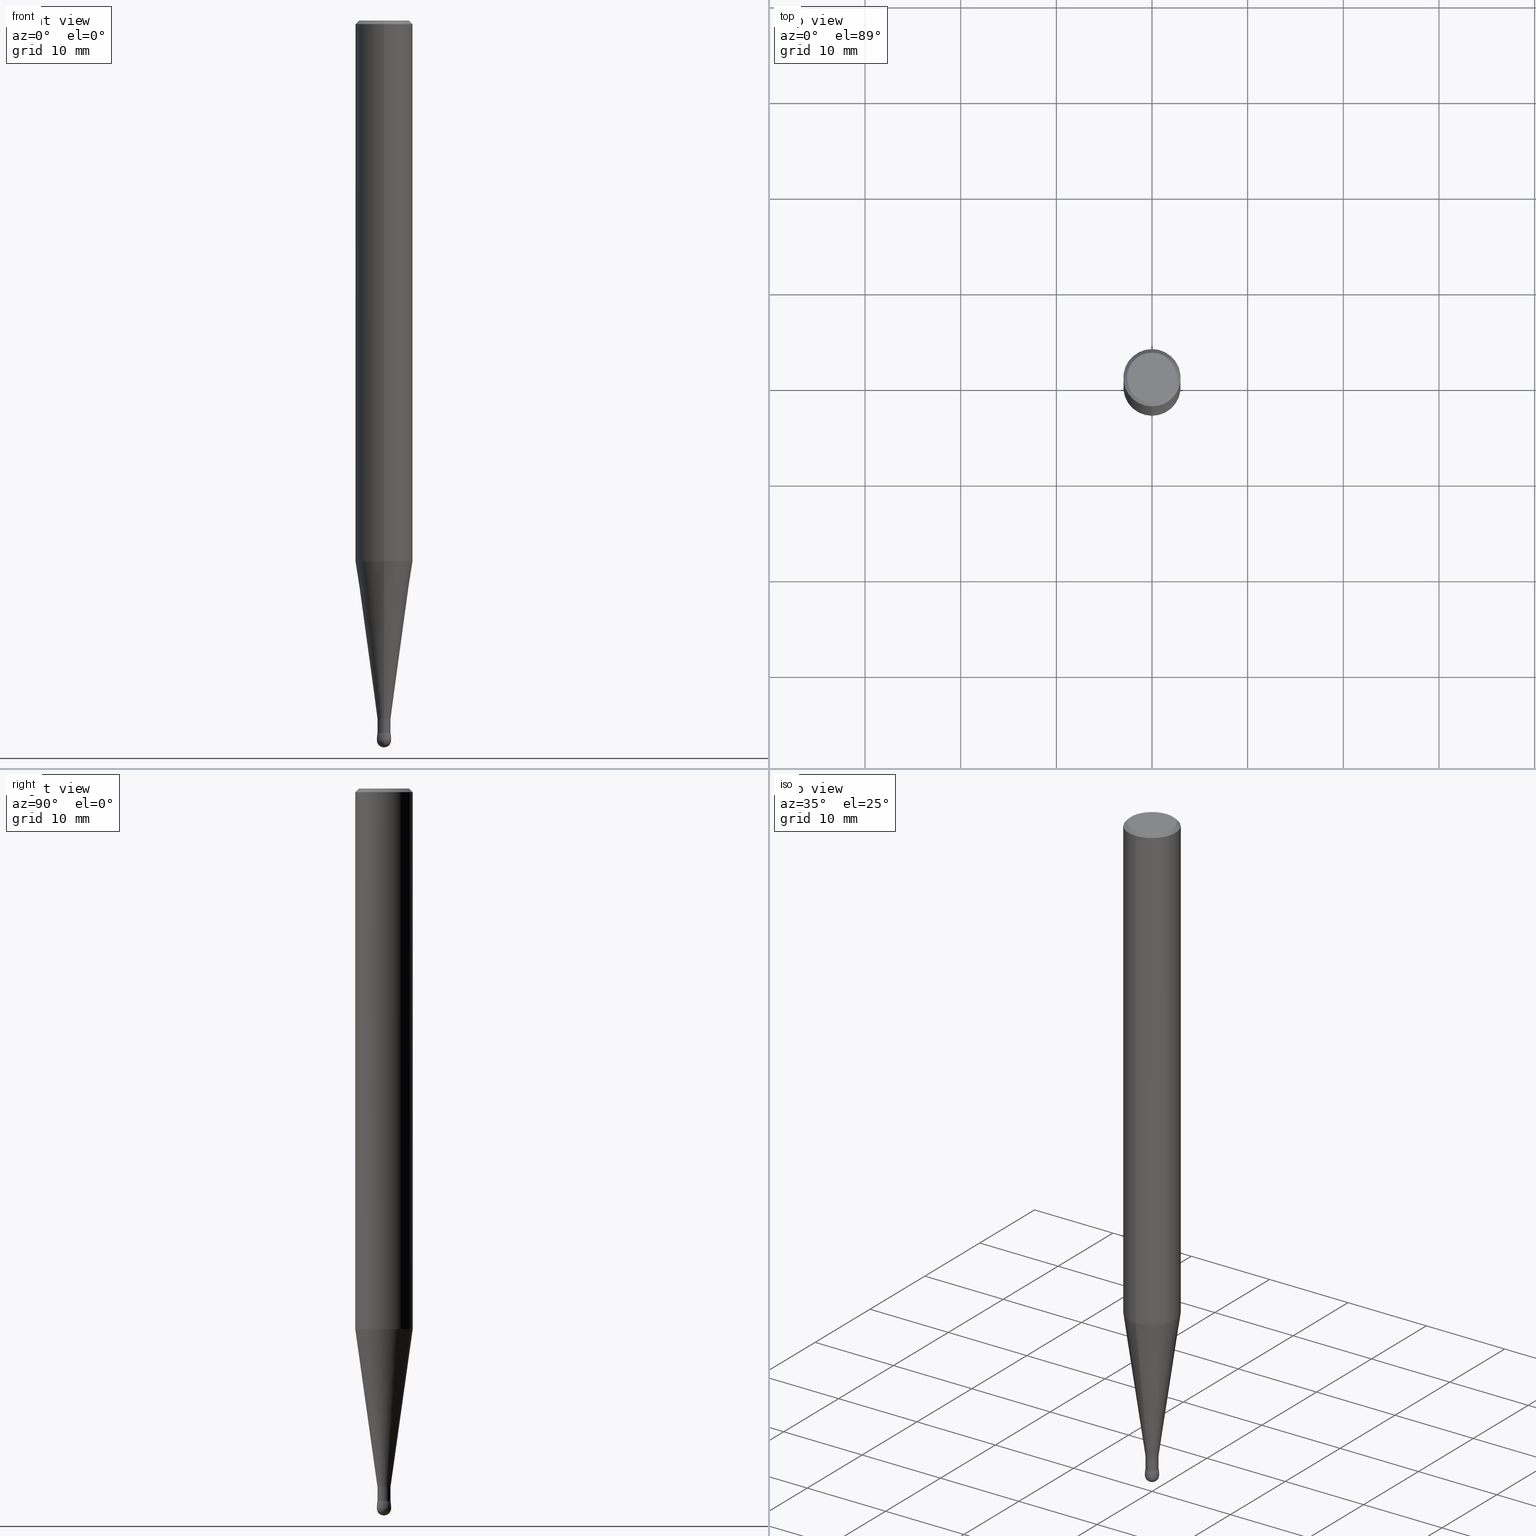
[diagram: canonical four-view strip — front | top / right | iso, engineering-drawing reading convention]
A machine part, canonical four-view strip (front | top / right | iso — engineering-drawing reading convention). The complete STEP part file that produces these views, byte-faithful:
ISO-10303-21;
HEADER;
FILE_DESCRIPTION (( 'STEP AP203' ),
    '1' );
FILE_NAME ('91350.STEP',
    '2024-02-29T19:21:57',
    ( '' ),
    ( '' ),
    'SwSTEP 2.0',
    'SolidWorks 2023',
    '' );
FILE_SCHEMA (( 'CONFIG_CONTROL_DESIGN' ));
ENDSEC;

DATA;
#1 = AXIS2_PLACEMENT_3D ( 'NONE', #483, #92, #296 ) ;
#2 = EDGE_LOOP ( 'NONE', ( #381, #66 ) ) ;
#3 = LOCAL_TIME ( 14, 21, 57.00000000000000000, #150 ) ;
#4 = ORIENTED_EDGE ( 'NONE', *, *, #370, .T. ) ;
#5 = APPROVAL_ROLE ( '' ) ;
#6 = EDGE_LOOP ( 'NONE', ( #391, #48, #73, #108 ) ) ;
#7 = CIRCLE ( 'NONE', #119, 0.02700000000000054440 ) ;
#8 = CARTESIAN_POINT ( 'NONE',  ( -1.878416960296926226E-16, -0.02690000000001078334, -2.932999999999999385 ) ) ;
#9 = ADVANCED_FACE ( 'NONE', ( #122 ), #395, .F. ) ;
#10 = LINE ( 'NONE', #83, #382 ) ;
#11 = CARTESIAN_POINT ( 'NONE',  ( 7.169190653361638240E-29, -1.024533987521558560E-14, -2.932999999999999385 ) ) ;
#12 = DIRECTION ( 'NONE',  ( -1.000000000000000000, 6.982962677686265922E-15, -4.883557194083113462E-29 ) ) ;
#13 = CC_DESIGN_PERSON_AND_ORGANIZATION_ASSIGNMENT ( #267, #196, ( #253 ) ) ;
#14 = ORIENTED_EDGE ( 'NONE', *, *, #370, .F. ) ;
#15 = AXIS2_PLACEMENT_3D ( 'NONE', #214, #250, #167 ) ;
#16 = DIRECTION ( 'NONE',  ( -8.954056820805339450E-29, -5.829187143917178840E-15, 1.000000000000000000 ) ) ;
#17 = CC_DESIGN_APPROVAL ( #197, ( #458 ) ) ;
#18 = LENGTH_MEASURE_WITH_UNIT ( LENGTH_MEASURE( 0.02539999999999999897 ), #183 );
#19 = FACE_OUTER_BOUND ( 'NONE', #85, .T. ) ;
#20 = AXIS2_PLACEMENT_3D ( 'NONE', #100, #259, #262 ) ;
#21 = VECTOR ( 'NONE', #165, 39.37007874015748143 ) ;
#22 = LINE ( 'NONE', #56, #484 ) ;
#23 = CONICAL_SURFACE ( 'NONE', #317, 0.1180999999999996358, 0.7853981633974579379 ) ;
#24 = EDGE_CURVE ( 'NONE', #215, #464, #207, .T. ) ;
#25 = FACE_OUTER_BOUND ( 'NONE', #28, .T. ) ;
#26 = APPROVAL ( #226, 'UNSPECIFIED' ) ;
#27 = DIRECTION ( 'NONE',  ( 2.444320031831448722E-29, -3.493126449101802848E-15, -1.000000000000000000 ) ) ;
#28 = EDGE_LOOP ( 'NONE', ( #443, #251 ) ) ;
#29 = DIRECTION ( 'NONE',  ( 6.982962677686265922E-15, 1.000000000000000000, -3.487819265831422394E-15 ) ) ;
#30 = ORIENTED_EDGE ( 'NONE', *, *, #386, .F. ) ;
#31 = ORIENTED_EDGE ( 'NONE', *, *, #220, .T. ) ;
#32 = APPROVAL_ROLE ( '' ) ;
#33 = DIRECTION ( 'NONE',  ( -6.982962677686265133E-15, -1.000000000000000000, 0.000000000000000000 ) ) ;
#34 = ORIENTED_EDGE ( 'NONE', *, *, #307, .T. ) ;
#35 = EDGE_CURVE ( 'NONE', #200, #428, #116, .T. ) ;
#36 = CC_DESIGN_PERSON_AND_ORGANIZATION_ASSIGNMENT ( #465, #494, ( #463 ) ) ;
#37 = AXIS2_PLACEMENT_3D ( 'NONE', #486, #412, #93 ) ;
#38 = ORIENTED_EDGE ( 'NONE', *, *, #304, .F. ) ;
#39 = DIRECTION ( 'NONE',  ( 6.982962677686265922E-15, 1.000000000000000000, 0.000000000000000000 ) ) ;
#40 = DIRECTION ( 'NONE',  ( 1.000000000000000000, 0.000000000000000000, 0.000000000000000000 ) ) ;
#41 = CARTESIAN_POINT ( 'NONE',  ( 7.433783032416440450E-29, -1.007308739511283101E-14, -2.962550000000000239 ) ) ;
#42 = DIRECTION ( 'NONE',  ( -4.937700262196268139E-15, -0.7071067811910876078, 0.7071067811820074267 ) ) ;
#43 = CARTESIAN_POINT ( 'NONE',  ( -5.066139422660767511E-16, -0.02700000000001057110, -2.874000000000000110 ) ) ;
#44 = ORIENTED_EDGE ( 'NONE', *, *, #268, .T. ) ;
#45 = ADVANCED_FACE ( 'NONE', ( #90 ), #284, .T. ) ;
#46 = CARTESIAN_POINT ( 'NONE',  ( -1.885399922974612241E-16, -0.02700000000001078274, -2.932999999999999385 ) ) ;
#47 = DIRECTION ( 'NONE',  ( -8.954056820805339450E-29, -5.829187143917178840E-15, 1.000000000000000000 ) ) ;
#48 = ORIENTED_EDGE ( 'NONE', *, *, #320, .T. ) ;
#49 = CARTESIAN_POINT ( 'NONE',  ( 5.440542639494698700E-29, -7.774965284413110621E-15, -2.225789818290806465 ) ) ;
#50 = EDGE_CURVE ( 'NONE', #427, #428, #204, .T. ) ;
#51 = CARTESIAN_POINT ( 'NONE',  ( 7.168946221358456384E-29, -1.024499056257067834E-14, -2.932900000000000951 ) ) ;
#52 = ORIENTED_EDGE ( 'NONE', *, *, #307, .F. ) ;
#53 = AXIS2_PLACEMENT_3D ( 'NONE', #339, #58, #446 ) ;
#54 = VECTOR ( 'NONE', #42, 39.37007874015748143 ) ;
#55 = CARTESIAN_POINT ( 'NONE',  ( 7.199434520694515404E-16, 0.1030999999999996503, -3.600571582562927298E-16 ) ) ;
#56 = CARTESIAN_POINT ( 'NONE',  ( -1.885399922974626539E-16, -0.02700000000001057110, -2.874000000000000110 ) ) ;
#57 = CARTESIAN_POINT ( 'NONE',  ( -8.246878922346912674E-16, -0.1181000000000074213, -2.225789818290806021 ) ) ;
#58 = DIRECTION ( 'NONE',  ( -1.000000000000000000, 6.982962677686265922E-15, -4.883557194083112901E-29 ) ) ;
#59 = VECTOR ( 'NONE', #450, 39.37007874015748143 ) ;
#60 = EDGE_CURVE ( 'NONE', #322, #229, #139, .T. ) ;
#61 = VECTOR ( 'NONE', #27, 39.37007874015748143 ) ;
#62 = CARTESIAN_POINT ( 'NONE',  ( 2.009059585362441923E-16, 0.02699999999999029218, -2.932999999999999385 ) ) ;
#63 = EDGE_CURVE ( 'NONE', #105, #322, #146, .T. ) ;
#64 = APPROVAL_ROLE ( '' ) ;
#65 = AXIS2_PLACEMENT_3D ( 'NONE', #11, #120, #466 ) ;
#66 = ORIENTED_EDGE ( 'NONE', *, *, #386, .T. ) ;
#67 = DESIGN_CONTEXT ( 'detailed design', #469, 'design' ) ;
#68 = CIRCLE ( 'NONE', #301, 0.1180999999999996358 ) ;
#69 = ORIENTED_EDGE ( 'NONE', *, *, #268, .F. ) ;
#70 = EDGE_CURVE ( 'NONE', #350, #427, #346, .T. ) ;
#71 = PERSON_AND_ORGANIZATION ( #265, #393 ) ;
#72 = UNCERTAINTY_MEASURE_WITH_UNIT (LENGTH_MEASURE( 1.000000000000000082E-05 ), #300, 'distance_accuracy_value', 'NONE');
#73 = ORIENTED_EDGE ( 'NONE', *, *, #50, .T. ) ;
#74 = EDGE_CURVE ( 'NONE', #229, #81, #82, .T. ) ;
#75 = AXIS2_PLACEMENT_3D ( 'NONE', #260, #138, #222 ) ;
#76 = ORIENTED_EDGE ( 'NONE', *, *, #176, .T. ) ;
#77 = ORIENTED_EDGE ( 'NONE', *, *, #234, .F. ) ;
#78 = PERSON_AND_ORGANIZATION_ROLE ( 'design_supplier' ) ;
#79 = ORIENTED_EDGE ( 'NONE', *, *, #35, .F. ) ;
#80 = DIRECTION ( 'NONE',  ( 6.982962677686265922E-15, 1.000000000000000000, 0.000000000000000000 ) ) ;
#81 = VERTEX_POINT ( 'NONE', #62 ) ;
#82 = CIRCLE ( 'NONE', #376, 0.02700000000000053746 ) ;
#83 = CARTESIAN_POINT ( 'NONE',  ( -8.102248135368149755E-16, -0.1180999999999996913, -0.01499999999999929168 ) ) ;
#84 = CIRCLE ( 'NONE', #264, 0.1030999999999996503 ) ;
#85 = EDGE_LOOP ( 'NONE', ( #306, #14 ) ) ;
#86 = VECTOR ( 'NONE', #88, 39.37007874015748143 ) ;
#87 = FACE_OUTER_BOUND ( 'NONE', #111, .T. ) ;
#88 = DIRECTION ( 'NONE',  ( 2.444320031831448722E-29, -3.493126449101802848E-15, -1.000000000000000000 ) ) ;
#89 = CARTESIAN_POINT ( 'NONE',  ( 7.199434520694515404E-16, 0.1030999999999996503, -3.601413369023946017E-16 ) ) ;
#90 = FACE_OUTER_BOUND ( 'NONE', #189, .T. ) ;
#91 = DIRECTION ( 'NONE',  ( 2.444320031831448722E-29, -3.493126449101802453E-15, -1.000000000000000000 ) ) ;
#92 = DIRECTION ( 'NONE',  ( 2.444320031831448722E-29, -3.493126449101802453E-15, -1.000000000000000000 ) ) ;
#93 = DIRECTION ( 'NONE',  ( -6.982962677686265922E-15, -1.000000000000000000, -5.829187143917178051E-15 ) ) ;
#94 = CARTESIAN_POINT ( 'NONE',  ( 8.391509709327297689E-16, 0.1180999999999918504, -2.225789818290806910 ) ) ;
#95 = DIRECTION ( 'NONE',  ( 6.982962677686265922E-15, 1.000000000000000000, 0.000000000000000000 ) ) ;
#96 = DIRECTION ( 'NONE',  ( 2.444320031831448161E-29, -3.493126449101802848E-15, -1.000000000000000000 ) ) ;
#97 = EDGE_CURVE ( 'NONE', #427, #231, #423, .T. ) ;
#98 = FACE_OUTER_BOUND ( 'NONE', #192, .T. ) ;
#99 = EDGE_CURVE ( 'NONE', #361, #200, #429, .T. ) ;
#100 = CARTESIAN_POINT ( 'NONE',  ( 3.666480047747100110E-31, -5.239689673652600315E-17, -0.01499999999999970281 ) ) ;
#101 = DIMENSIONAL_EXPONENTS ( 1.000000000000000000, 0.000000000000000000, 0.000000000000000000, 0.000000000000000000, 0.000000000000000000, 0.000000000000000000, 0.000000000000000000 ) ;
#102 = AXIS2_PLACEMENT_3D ( 'NONE', #297, #91, #141 ) ;
#103 = LOCAL_TIME ( 14, 21, 57.00000000000000000, #460 ) ;
#104 = CARTESIAN_POINT ( 'NONE',  ( 3.666480047747100110E-31, -5.239689673652600315E-17, -0.01499999999999970281 ) ) ;
#105 = VERTEX_POINT ( 'NONE', #419 ) ;
#106 = SECURITY_CLASSIFICATION_LEVEL ( 'unclassified' ) ;
#107 = PERSON_AND_ORGANIZATION ( #265, #393 ) ;
#108 = ORIENTED_EDGE ( 'NONE', *, *, #223, .F. ) ;
#109 = CALENDAR_DATE ( 2024, 29, 2 ) ;
#110 = EDGE_CURVE ( 'NONE', #361, #464, #147, .T. ) ;
#111 = EDGE_LOOP ( 'NONE', ( #359, #269, #439, #492 ) ) ;
#112 = DATE_AND_TIME ( #151, #103 ) ;
#113 = AXIS2_PLACEMENT_3D ( 'NONE', #364, #47, #128 ) ;
#114 = AXIS2_PLACEMENT_3D ( 'NONE', #55, #134, #257 ) ;
#115 = CARTESIAN_POINT ( 'NONE',  ( 1.914912672874225458E-16, 0.02689999999999029279, -2.932999999999999385 ) ) ;
#116 = LINE ( 'NONE', #325, #179 ) ;
#117 = CIRCLE ( 'NONE', #354, 0.02955000000000038846 ) ;
#118 = PERSON_AND_ORGANIZATION_ROLE ( 'creator' ) ;
#119 = AXIS2_PLACEMENT_3D ( 'NONE', #51, #480, #133 ) ;
#120 = DIRECTION ( 'NONE',  ( -2.444320031831448722E-29, 3.493126449101802453E-15, 1.000000000000000000 ) ) ;
#121 = CARTESIAN_POINT ( 'NONE',  ( 7.169190653361638240E-29, -1.024533987521558560E-14, -2.932999999999999385 ) ) ;
#122 = FACE_OUTER_BOUND ( 'NONE', #2, .T. ) ;
#123 = AXIS2_PLACEMENT_3D ( 'NONE', #125, #286, #245 ) ;
#124 = DIRECTION ( 'NONE',  ( 6.982962677686265922E-15, 1.000000000000000000, 0.000000000000000000 ) ) ;
#125 = CARTESIAN_POINT ( 'NONE',  ( 7.169190653361638240E-29, -1.024533987521558560E-14, -2.932999999999999385 ) ) ;
#126 = VERTEX_POINT ( 'NONE', #148 ) ;
#127 = LINE ( 'NONE', #442, #86 ) ;
#128 = DIRECTION ( 'NONE',  ( -6.982962677686265922E-15, -1.000000000000000000, 0.000000000000000000 ) ) ;
#129 = TOROIDAL_SURFACE ( 'NONE', #37, -0.1429411764705864618, 0.1724911764705867323 ) ;
#130 = ORIENTED_EDGE ( 'NONE', *, *, #453, .T. ) ;
#131 = ADVANCED_FACE ( 'NONE', ( #461 ), #205, .T. ) ;
#132 = FACE_OUTER_BOUND ( 'NONE', #170, .T. ) ;
#133 = DIRECTION ( 'NONE',  ( 6.982962677686265922E-15, 1.000000000000000000, 0.000000000000000000 ) ) ;
#134 = DIRECTION ( 'NONE',  ( -2.444320031831448161E-29, 3.493126449101802848E-15, 1.000000000000000000 ) ) ;
#135 = PLANE ( 'NONE',  #144 ) ;
#136 = FACE_OUTER_BOUND ( 'NONE', #348, .T. ) ;
#137 = CARTESIAN_POINT ( 'NONE',  ( 7.435587537572467769E-29, -1.007050324102332857E-14, -2.962549999999998018 ) ) ;
#138 = DIRECTION ( 'NONE',  ( -2.444320031831448722E-29, 3.493126449101802453E-15, 1.000000000000000000 ) ) ;
#139 = CIRCLE ( 'NONE', #373, 0.1724911764705867323 ) ;
#140 = FACE_OUTER_BOUND ( 'NONE', #236, .T. ) ;
#141 = DIRECTION ( 'NONE',  ( 6.982962677686265133E-15, 1.000000000000000000, 0.000000000000000000 ) ) ;
#142 = CARTESIAN_POINT ( 'NONE',  ( -8.102248135368149755E-16, -0.1180999999999996913, -0.01499999999999929168 ) ) ;
#143 =( NAMED_UNIT ( * ) SI_UNIT ( $, .STERADIAN. ) SOLID_ANGLE_UNIT ( ) );
#144 = AXIS2_PLACEMENT_3D ( 'NONE', #413, #96, #418 ) ;
#145 = CIRCLE ( 'NONE', #213, 0.1030999999999996503 ) ;
#146 = CIRCLE ( 'NONE', #314, 0.02955000000000011437 ) ;
#147 = LINE ( 'NONE', #424, #61 ) ;
#148 = CARTESIAN_POINT ( 'NONE',  ( 1.885399922976046981E-16, 0.02699999999999030259, -2.932900000000000951 ) ) ;
#149 = ORIENTED_EDGE ( 'NONE', *, *, #110, .T. ) ;
#150 = COORDINATED_UNIVERSAL_TIME_OFFSET ( 5, 0, .BEHIND. ) ;
#151 = CALENDAR_DATE ( 2024, 29, 2 ) ;
#152 = CIRCLE ( 'NONE', #20, 0.1180999999999996358 ) ;
#153 = ORIENTED_EDGE ( 'NONE', *, *, #223, .T. ) ;
#154 = APPROVAL_STATUS ( 'not_yet_approved' ) ;
#155 = EDGE_CURVE ( 'NONE', #322, #434, #117, .T. ) ;
#156 = AXIS2_PLACEMENT_3D ( 'NONE', #485, #302, #449 ) ;
#157 = AXIS2_PLACEMENT_3D ( 'NONE', #104, #188, #29 ) ;
#158 = ORIENTED_EDGE ( 'NONE', *, *, #155, .T. ) ;
#159 = ORIENTED_EDGE ( 'NONE', *, *, #420, .F. ) ;
#160 = APPROVAL_PERSON_ORGANIZATION ( #279, #197, #5 ) ;
#161 = PERSON_AND_ORGANIZATION ( #265, #393 ) ;
#162 = ORIENTED_EDGE ( 'NONE', *, *, #63, .F. ) ;
#163 = COORDINATED_UNIVERSAL_TIME_OFFSET ( 5, 0, .BEHIND. ) ;
#164 = ORIENTED_EDGE ( 'NONE', *, *, #321, .F. ) ;
#165 = DIRECTION ( 'NONE',  ( 2.444320031831448722E-29, -3.493126449101802848E-15, -1.000000000000000000 ) ) ;
#166 = CARTESIAN_POINT ( 'NONE',  ( 3.666480047747100110E-31, -5.239689673652600315E-17, -0.01499999999999970281 ) ) ;
#167 = DIRECTION ( 'NONE',  ( -6.982962677686265133E-15, -1.000000000000000000, 0.000000000000000000 ) ) ;
#168 = CARTESIAN_POINT ( 'NONE',  ( 7.625533080822002390E-29, -9.798490412061076134E-15, -2.962549999999999795 ) ) ;
#169 = ADVANCED_FACE ( 'NONE', ( #372 ), #274, .T. ) ;
#170 = EDGE_LOOP ( 'NONE', ( #385, #400, #243 ) ) ;
#171 = DIRECTION ( 'NONE',  ( 1.000000000000000000, -7.105427357601001070E-15, 4.812170240308822913E-29 ) ) ;
#172 = DIRECTION ( 'NONE',  ( 2.444320031831448722E-29, -3.493126449101802453E-15, -1.000000000000000000 ) ) ;
#173 = TOROIDAL_SURFACE ( 'NONE', #455, -0.1429411764705864618, 0.1724911764705867323 ) ;
#174 = LOCAL_TIME ( 14, 21, 57.00000000000000000, #379 ) ;
#175 = CARTESIAN_POINT ( 'NONE',  ( 7.169190653361638240E-29, -1.024533987521558560E-14, -2.932999999999999385 ) ) ;
#176 = EDGE_CURVE ( 'NONE', #231, #493, #127, .T. ) ;
#177 = CARTESIAN_POINT ( 'NONE',  ( -1.852334459397647952E-16, -0.02700000000001078967, -2.932900000000000951 ) ) ;
#178 = CARTESIAN_POINT ( 'NONE',  ( 0.000000000000000000, 0.000000000000000000, 0.000000000000000000 ) ) ;
#179 = VECTOR ( 'NONE', #471, 39.37007874015748143 ) ;
#180 = DIRECTION ( 'NONE',  ( -6.982962677686265922E-15, -1.000000000000000000, -5.829187143917178051E-15 ) ) ;
#181 =( GEOMETRIC_REPRESENTATION_CONTEXT ( 3 ) GLOBAL_UNCERTAINTY_ASSIGNED_CONTEXT ( ( #72 ) ) GLOBAL_UNIT_ASSIGNED_CONTEXT ( ( #300, #342, #143 ) ) REPRESENTATION_CONTEXT ( 'NONE', 'WORKASPACE' ) );
#182 = APPROVAL_PERSON_ORGANIZATION ( #161, #454, #32 ) ;
#183 =( LENGTH_UNIT ( ) NAMED_UNIT ( * ) SI_UNIT ( $, .METRE. ) );
#184 = CIRCLE ( 'NONE', #445, 0.1724911764705867323 ) ;
#185 = EDGE_CURVE ( 'NONE', #215, #333, #421, .T. ) ;
#186 = DIRECTION ( 'NONE',  ( -8.954056820805339450E-29, -5.829187143917178840E-15, 1.000000000000000000 ) ) ;
#187 = VECTOR ( 'NONE', #193, 39.37007874015748854 ) ;
#188 = DIRECTION ( 'NONE',  ( 2.444320031831448722E-29, -3.493126449101802453E-15, -1.000000000000000000 ) ) ;
#189 = EDGE_LOOP ( 'NONE', ( #44, #149, #462, #288 ) ) ;
#190 = CIRCLE ( 'NONE', #392, 0.1180999999999996358 ) ;
#191 = CALENDAR_DATE ( 2024, 29, 2 ) ;
#192 = EDGE_LOOP ( 'NONE', ( #52, #266, #194, #425 ) ) ;
#193 = DIRECTION ( 'NONE',  ( 4.937700262164594585E-15, 0.7071067811865517916, -0.7071067811865430208 ) ) ;
#194 = ORIENTED_EDGE ( 'NONE', *, *, #24, .T. ) ;
#195 = VECTOR ( 'NONE', #299, 39.37007874015748143 ) ;
#196 = PERSON_AND_ORGANIZATION_ROLE ( 'classification_officer' ) ;
#197 = APPROVAL ( #358, 'UNSPECIFIED' ) ;
#198 = CALENDAR_DATE ( 2024, 29, 2 ) ;
#199 = ORIENTED_EDGE ( 'NONE', *, *, #278, .T. ) ;
#200 = VERTEX_POINT ( 'NONE', #254 ) ;
#201 = DIRECTION ( 'NONE',  ( 0.000000000000000000, 0.000000000000000000, 1.000000000000000000 ) ) ;
#202 = ORIENTED_EDGE ( 'NONE', *, *, #74, .F. ) ;
#203 = DIRECTION ( 'NONE',  ( 1.000000000000000000, -6.982962677686265922E-15, 4.883557194083113462E-29 ) ) ;
#204 = LINE ( 'NONE', #467, #21 ) ;
#205 = CONICAL_SURFACE ( 'NONE', #221, 0.02700000000000053399, 0.1396263401595466969 ) ;
#206 = SPHERICAL_SURFACE ( 'NONE', #227, 0.02955000000000011437 ) ;
#207 = LINE ( 'NONE', #8, #54 ) ;
#208 = EDGE_CURVE ( 'NONE', #351, #231, #10, .T. ) ;
#209 = DIRECTION ( 'NONE',  ( 2.444320031831448722E-29, -3.493126449101802453E-15, -1.000000000000000000 ) ) ;
#210 = CARTESIAN_POINT ( 'NONE',  ( 7.172560008541006903E-29, -1.024051476682694225E-14, -2.932999999999999385 ) ) ;
#211 = DIRECTION ( 'NONE',  ( 6.982962677686265922E-15, 1.000000000000000000, -4.626330217890383536E-15 ) ) ;
#212 = CONICAL_SURFACE ( 'NONE', #75, 0.02690000000000053806, 0.7853981634038724735 ) ;
#213 = AXIS2_PLACEMENT_3D ( 'NONE', #280, #394, #283 ) ;
#214 = CARTESIAN_POINT ( 'NONE',  ( 7.024975771483583061E-29, -1.003924541471858020E-14, -2.874000000000000110 ) ) ;
#215 = VERTEX_POINT ( 'NONE', #474 ) ;
#216 = AXIS2_PLACEMENT_3D ( 'NONE', #312, #380, #456 ) ;
#217 = CYLINDRICAL_SURFACE ( 'NONE', #1, 0.1180999999999996358 ) ;
#218 = CYLINDRICAL_SURFACE ( 'NONE', #156, 0.1180999999999996358 ) ;
#219 = FACE_OUTER_BOUND ( 'NONE', #384, .T. ) ;
#220 = EDGE_CURVE ( 'NONE', #126, #464, #7, .T. ) ;
#221 = AXIS2_PLACEMENT_3D ( 'NONE', #378, #490, #33 ) ;
#222 = DIRECTION ( 'NONE',  ( -6.982962677686265922E-15, -1.000000000000000000, 0.000000000000000000 ) ) ;
#223 = EDGE_CURVE ( 'NONE', #493, #428, #68, .T. ) ;
#224 = CC_DESIGN_PERSON_AND_ORGANIZATION_ASSIGNMENT ( #107, #232, ( #387 ) ) ;
#225 = CC_DESIGN_SECURITY_CLASSIFICATION ( #253, ( #458 ) ) ;
#226 = APPROVAL_STATUS ( 'not_yet_approved' ) ;
#227 = AXIS2_PLACEMENT_3D ( 'NONE', #435, #438, #80 ) ;
#228 = ORIENTED_EDGE ( 'NONE', *, *, #362, .T. ) ;
#229 = VERTEX_POINT ( 'NONE', #46 ) ;
#230 = MECHANICAL_CONTEXT ( 'NONE', #310, 'mechanical' ) ;
#231 = VERTEX_POINT ( 'NONE', #142 ) ;
#232 = PERSON_AND_ORGANIZATION_ROLE ( 'design_owner' ) ;
#233 = CONICAL_SURFACE ( 'NONE', #15, 0.02700000000000053399, 0.1396263401595466969 ) ;
#234 = EDGE_CURVE ( 'NONE', #464, #126, #363, .T. ) ;
#235 = AXIS2_PLACEMENT_3D ( 'NONE', #175, #172, #416 ) ;
#236 = EDGE_LOOP ( 'NONE', ( #285, #76, #276, #422 ) ) ;
#237 = MANIFOLD_SOLID_BREP ( 'Body-Move/Copy2[2]', #343 ) ;
#238 = CARTESIAN_POINT ( 'NONE',  ( 0.000000000000000000, 0.000000000000000000, 0.000000000000000000 ) ) ;
#239 = PRODUCT_RELATED_PRODUCT_CATEGORY ( 'detail', '', ( #387 ) ) ;
#240 = CARTESIAN_POINT ( 'NONE',  ( 7.625533080822002390E-29, -9.798490412061076134E-15, -2.962549999999999795 ) ) ;
#241 = ORIENTED_EDGE ( 'NONE', *, *, #208, .F. ) ;
#242 = FACE_OUTER_BOUND ( 'NONE', #313, .T. ) ;
#243 = ORIENTED_EDGE ( 'NONE', *, *, #453, .F. ) ;
#244 = DIRECTION ( 'NONE',  ( -8.954056820805339450E-29, -5.829187143917178840E-15, 1.000000000000000000 ) ) ;
#245 = DIRECTION ( 'NONE',  ( 6.982962677686265922E-15, 1.000000000000000000, 0.000000000000000000 ) ) ;
#246 = ORIENTED_EDGE ( 'NONE', *, *, #406, .T. ) ;
#247 = AXIS2_PLACEMENT_3D ( 'NONE', #210, #431, #256 ) ;
#248 = ADVANCED_FACE ( 'NONE', ( #219 ), #129, .T. ) ;
#249 = DIRECTION ( 'NONE',  ( 2.444320031831448722E-29, -3.493126449101802453E-15, -1.000000000000000000 ) ) ;
#250 = DIRECTION ( 'NONE',  ( -2.444320031831448722E-29, 3.493126449101802453E-15, 1.000000000000000000 ) ) ;
#251 = ORIENTED_EDGE ( 'NONE', *, *, #420, .T. ) ;
#252 = CARTESIAN_POINT ( 'NONE',  ( -1.015658145821703314E-15, -0.1429411764705965371, -2.962549999999999351 ) ) ;
#253 = SECURITY_CLASSIFICATION ( '', '', #106 ) ;
#254 = CARTESIAN_POINT ( 'NONE',  ( 5.154987547940153247E-16, 0.02699999999999049341, -2.874000000000000110 ) ) ;
#255 = LINE ( 'NONE', #433, #195 ) ;
#256 = DIRECTION ( 'NONE',  ( 6.982962677686265922E-15, 1.000000000000000000, 5.829187143917178051E-15 ) ) ;
#257 = DIRECTION ( 'NONE',  ( -6.982962677686265922E-15, -1.000000000000000000, 3.493126449101802848E-15 ) ) ;
#258 = DIRECTION ( 'NONE',  ( -6.982962677686265922E-15, -1.000000000000000000, 0.000000000000000000 ) ) ;
#259 = DIRECTION ( 'NONE',  ( 2.444320031831448722E-29, -3.493126449101802453E-15, -1.000000000000000000 ) ) ;
#260 = CARTESIAN_POINT ( 'NONE',  ( 7.169190653361638240E-29, -1.024533987521558560E-14, -2.932999999999999385 ) ) ;
#261 = ADVANCED_FACE ( 'NONE', ( #87 ), #23, .T. ) ;
#262 = DIRECTION ( 'NONE',  ( 6.982962677686265922E-15, 1.000000000000000000, -3.487819265831422394E-15 ) ) ;
#263 = EDGE_CURVE ( 'NONE', #350, #351, #84, .T. ) ;
#264 = AXIS2_PLACEMENT_3D ( 'NONE', #178, #482, #293 ) ;
#265 = PERSON ( 'UNSPECIFIED', 'UNSPECIFIED', 'UNSPECIFIED', ('UNSPECIFIED'), ('UNSPECIFIED'), ('UNSPECIFIED') ) ;
#266 = ORIENTED_EDGE ( 'NONE', *, *, #185, .F. ) ;
#267 = PERSON_AND_ORGANIZATION ( #265, #393 ) ;
#268 = EDGE_CURVE ( 'NONE', #200, #361, #335, .T. ) ;
#269 = ORIENTED_EDGE ( 'NONE', *, *, #208, .T. ) ;
#270 = DATE_AND_TIME ( #191, #3 ) ;
#271 = DATE_TIME_ROLE ( 'creation_date' ) ;
#272 = AXIS2_PLACEMENT_3D ( 'NONE', #121, #408, #39 ) ;
#273 = ORIENTED_EDGE ( 'NONE', *, *, #24, .F. ) ;
#274 = CONICAL_SURFACE ( 'NONE', #318, 0.1180999999999996358, 0.7853981633974579379 ) ;
#275 = SHAPE_DEFINITION_REPRESENTATION ( #316, #356 ) ;
#276 = ORIENTED_EDGE ( 'NONE', *, *, #278, .F. ) ;
#277 = ORIENTED_EDGE ( 'NONE', *, *, #70, .T. ) ;
#278 = EDGE_CURVE ( 'NONE', #428, #493, #190, .T. ) ;
#279 = PERSON_AND_ORGANIZATION ( #265, #393 ) ;
#280 = CARTESIAN_POINT ( 'NONE',  ( 0.000000000000000000, 0.000000000000000000, 0.000000000000000000 ) ) ;
#281 = ORIENTED_EDGE ( 'NONE', *, *, #60, .F. ) ;
#282 = DATE_AND_TIME ( #326, #404 ) ;
#283 = DIRECTION ( 'NONE',  ( 6.982962677686265922E-15, 1.000000000000000000, -3.493126449101802453E-15 ) ) ;
#284 = CYLINDRICAL_SURFACE ( 'NONE', #272, 0.02700000000000054093 ) ;
#285 = ORIENTED_EDGE ( 'NONE', *, *, #97, .T. ) ;
#286 = DIRECTION ( 'NONE',  ( 2.444320031831448722E-29, -3.493126449101802453E-15, -1.000000000000000000 ) ) ;
#287 = CC_DESIGN_PERSON_AND_ORGANIZATION_ASSIGNMENT ( #432, #78, ( #458 ) ) ;
#288 = ORIENTED_EDGE ( 'NONE', *, *, #406, .F. ) ;
#289 = AXIS2_PLACEMENT_3D ( 'NONE', #329, #249, #124 ) ;
#290 = CIRCLE ( 'NONE', #479, 0.02955000000000038846 ) ;
#291 = DIRECTION ( 'NONE',  ( 6.982962677686265922E-15, 1.000000000000000000, -3.487819265831422394E-15 ) ) ;
#292 = ORIENTED_EDGE ( 'NONE', *, *, #320, .F. ) ;
#293 = DIRECTION ( 'NONE',  ( 6.982962677686265922E-15, 1.000000000000000000, -3.493126449101802453E-15 ) ) ;
#294 = ADVANCED_FACE ( 'NONE', ( #368 ), #173, .T. ) ;
#295 = CARTESIAN_POINT ( 'NONE',  ( 5.440542639494698700E-29, -7.774965284413110621E-15, -2.225789818290806465 ) ) ;
#296 = DIRECTION ( 'NONE',  ( 6.982962677686265922E-15, 1.000000000000000000, -4.626330217890383536E-15 ) ) ;
#297 = CARTESIAN_POINT ( 'NONE',  ( 7.024975771483583061E-29, -1.003924541471858020E-14, -2.874000000000000110 ) ) ;
#298 = CONICAL_SURFACE ( 'NONE', #65, 0.02690000000000053806, 0.7853981634038724735 ) ;
#299 = DIRECTION ( 'NONE',  ( 2.444320031831448722E-29, -3.493126449101802848E-15, -1.000000000000000000 ) ) ;
#300 =( CONVERSION_BASED_UNIT ( 'INCH', #18 ) LENGTH_UNIT ( ) NAMED_UNIT ( #101 ) );
#301 = AXIS2_PLACEMENT_3D ( 'NONE', #295, #401, #366 ) ;
#302 = DIRECTION ( 'NONE',  ( 2.444320031831448722E-29, -3.493126449101802453E-15, -1.000000000000000000 ) ) ;
#303 = DIRECTION ( 'NONE',  ( -8.954056820805339450E-29, -5.829187143917178840E-15, 1.000000000000000000 ) ) ;
#304 = EDGE_CURVE ( 'NONE', #361, #493, #22, .T. ) ;
#305 = AXIS2_PLACEMENT_3D ( 'NONE', #238, #201, #40 ) ;
#306 = ORIENTED_EDGE ( 'NONE', *, *, #263, .F. ) ;
#307 = EDGE_CURVE ( 'NONE', #333, #126, #417, .T. ) ;
#308 = CC_DESIGN_APPROVAL ( #26, ( #253 ) ) ;
#309 = ORIENTED_EDGE ( 'NONE', *, *, #99, .F. ) ;
#310 = APPLICATION_CONTEXT ( 'configuration controlled 3d designs of mechanical parts and assemblies' ) ;
#311 = APPROVAL_DATE_TIME ( #282, #197 ) ;
#312 = CARTESIAN_POINT ( 'NONE',  ( 7.024975771483583061E-29, -1.003924541471858020E-14, -2.874000000000000110 ) ) ;
#313 = EDGE_LOOP ( 'NONE', ( #315, #389, #246, #77 ) ) ;
#314 = AXIS2_PLACEMENT_3D ( 'NONE', #168, #330, #402 ) ;
#315 = ORIENTED_EDGE ( 'NONE', *, *, #110, .F. ) ;
#316 = PRODUCT_DEFINITION_SHAPE ( 'NONE', 'NONE',  #463 ) ;
#317 = AXIS2_PLACEMENT_3D ( 'NONE', #488, #375, #340 ) ;
#318 = AXIS2_PLACEMENT_3D ( 'NONE', #166, #209, #291 ) ;
#319 = APPROVAL_PERSON_ORGANIZATION ( #71, #26, #64 ) ;
#320 = EDGE_CURVE ( 'NONE', #231, #427, #152, .T. ) ;
#321 = EDGE_CURVE ( 'NONE', #434, #81, #184, .T. ) ;
#322 = VERTEX_POINT ( 'NONE', #478 ) ;
#323 = COORDINATED_UNIVERSAL_TIME_OFFSET ( 5, 0, .BEHIND. ) ;
#324 = FACE_OUTER_BOUND ( 'NONE', #457, .T. ) ;
#325 = CARTESIAN_POINT ( 'NONE',  ( 1.918465386553010530E-16, 0.02699999999999049341, -2.874000000000000110 ) ) ;
#326 = CALENDAR_DATE ( 2024, 29, 2 ) ;
#327 = ORIENTED_EDGE ( 'NONE', *, *, #155, .F. ) ;
#328 = CARTESIAN_POINT ( 'NONE',  ( 9.981529003987458460E-16, 0.1429411764705763865, -2.962549999999997130 ) ) ;
#329 = CARTESIAN_POINT ( 'NONE',  ( 7.169190653361638240E-29, -1.024533987521558560E-14, -2.932999999999999385 ) ) ;
#330 = DIRECTION ( 'NONE',  ( -1.000000000000000000, 7.105427357601001070E-15, -4.812170240308822913E-29 ) ) ;
#331 = ADVANCED_FACE ( 'NONE', ( #132 ), #206, .T. ) ;
#332 = DIRECTION ( 'NONE',  ( 6.982962677686265922E-15, 1.000000000000000000, 0.000000000000000000 ) ) ;
#333 = VERTEX_POINT ( 'NONE', #115 ) ;
#334 = DIRECTION ( 'NONE',  ( 7.105427357601001070E-15, 1.000000000000000000, 0.000000000000000000 ) ) ;
#335 = CIRCLE ( 'NONE', #102, 0.02700000000000053399 ) ;
#336 = SPHERICAL_SURFACE ( 'NONE', #53, 0.02955000000000011437 ) ;
#337 = DIRECTION ( 'NONE',  ( 2.444320031831448722E-29, -3.493126449101802453E-15, -1.000000000000000000 ) ) ;
#338 = CC_DESIGN_APPROVAL ( #454, ( #463 ) ) ;
#339 = CARTESIAN_POINT ( 'NONE',  ( 7.625533080822002390E-29, -9.798490412061076134E-15, -2.962549999999999795 ) ) ;
#340 = DIRECTION ( 'NONE',  ( 6.982962677686265922E-15, 1.000000000000000000, -3.487819265831422394E-15 ) ) ;
#341 = FACE_OUTER_BOUND ( 'NONE', #6, .T. ) ;
#342 =( NAMED_UNIT ( * ) PLANE_ANGLE_UNIT ( ) SI_UNIT ( $, .RADIAN. ) );
#343 = CLOSED_SHELL ( 'NONE', ( #473, #261, #344, #45, #353, #131, #345, #487, #489, #440, #169, #448 ) ) ;
#344 = ADVANCED_FACE ( 'NONE', ( #324 ), #298, .T. ) ;
#345 = ADVANCED_FACE ( 'NONE', ( #242 ), #399, .T. ) ;
#346 = LINE ( 'NONE', #415, #187 ) ;
#347 = LOCAL_TIME ( 14, 21, 57.00000000000000000, #323 ) ;
#348 = EDGE_LOOP ( 'NONE', ( #162, #228, #327 ) ) ;
#349 = DATE_AND_TIME ( #109, #174 ) ;
#350 = VERTEX_POINT ( 'NONE', #89 ) ;
#351 = VERTEX_POINT ( 'NONE', #430 ) ;
#352 = DATE_AND_TIME ( #198, #347 ) ;
#353 = ADVANCED_FACE ( 'NONE', ( #397 ), #233, .T. ) ;
#354 = AXIS2_PLACEMENT_3D ( 'NONE', #41, #244, #407 ) ;
#355 = EDGE_LOOP ( 'NONE', ( #79, #309, #365, #153 ) ) ;
#356 = ADVANCED_BREP_SHAPE_REPRESENTATION ( '91350', ( #403, #237, #305 ), #181 ) ;
#357 = EDGE_LOOP ( 'NONE', ( #241, #4, #277, #292 ) ) ;
#358 = APPROVAL_STATUS ( 'not_yet_approved' ) ;
#359 = ORIENTED_EDGE ( 'NONE', *, *, #263, .T. ) ;
#360 = APPLICATION_PROTOCOL_DEFINITION ( 'international standard', 'config_control_design', 1994, #469 ) ;
#361 = VERTEX_POINT ( 'NONE', #43 ) ;
#362 = EDGE_CURVE ( 'NONE', #105, #434, #452, .T. ) ;
#363 = CIRCLE ( 'NONE', #414, 0.02700000000000054440 ) ;
#364 = CARTESIAN_POINT ( 'NONE',  ( 7.169190653361640482E-29, -1.024533987521558402E-14, -2.932999999999999385 ) ) ;
#365 = ORIENTED_EDGE ( 'NONE', *, *, #304, .T. ) ;
#366 = DIRECTION ( 'NONE',  ( 6.982962677686265922E-15, 1.000000000000000000, -4.626330217890383536E-15 ) ) ;
#367 = ORIENTED_EDGE ( 'NONE', *, *, #60, .T. ) ;
#368 = FACE_OUTER_BOUND ( 'NONE', #472, .T. ) ;
#369 = AXIS2_PLACEMENT_3D ( 'NONE', #240, #203, #332 ) ;
#370 = EDGE_CURVE ( 'NONE', #351, #350, #145, .T. ) ;
#371 = CC_DESIGN_DATE_AND_TIME_ASSIGNMENT ( #112, #271, ( #463 ) ) ;
#372 = FACE_OUTER_BOUND ( 'NONE', #357, .T. ) ;
#373 = AXIS2_PLACEMENT_3D ( 'NONE', #328, #12, #436 ) ;
#374 = CARTESIAN_POINT ( 'NONE',  ( 7.433783032416440450E-29, -1.007308739511283101E-14, -2.962550000000000239 ) ) ;
#375 = DIRECTION ( 'NONE',  ( 2.444320031831448722E-29, -3.493126449101802453E-15, -1.000000000000000000 ) ) ;
#376 = AXIS2_PLACEMENT_3D ( 'NONE', #383, #186, #491 ) ;
#377 = CC_DESIGN_PERSON_AND_ORGANIZATION_ASSIGNMENT ( #470, #118, ( #458 ) ) ;
#378 = CARTESIAN_POINT ( 'NONE',  ( 7.024975771483583061E-29, -1.003924541471858020E-14, -2.874000000000000110 ) ) ;
#379 = COORDINATED_UNIVERSAL_TIME_OFFSET ( 5, 0, .BEHIND. ) ;
#380 = DIRECTION ( 'NONE',  ( 2.444320031831448722E-29, -3.493126449101802453E-15, -1.000000000000000000 ) ) ;
#381 = ORIENTED_EDGE ( 'NONE', *, *, #74, .T. ) ;
#382 = VECTOR ( 'NONE', #437, 39.37007874015748143 ) ;
#383 = CARTESIAN_POINT ( 'NONE',  ( 7.169190653361640482E-29, -1.024533987521558402E-14, -2.932999999999999385 ) ) ;
#384 = EDGE_LOOP ( 'NONE', ( #158, #477, #202, #281 ) ) ;
#385 = ORIENTED_EDGE ( 'NONE', *, *, #362, .F. ) ;
#386 = EDGE_CURVE ( 'NONE', #81, #229, #410, .T. ) ;
#387 = PRODUCT ( '91350', '91350', '', ( #230 ) ) ;
#388 = APPLICATION_PROTOCOL_DEFINITION ( 'international standard', 'config_control_design', 1994, #310 ) ;
#389 = ORIENTED_EDGE ( 'NONE', *, *, #99, .T. ) ;
#390 = CLOSED_SHELL ( 'NONE', ( #248, #331, #426, #294, #9 ) ) ;
#391 = ORIENTED_EDGE ( 'NONE', *, *, #176, .F. ) ;
#392 = AXIS2_PLACEMENT_3D ( 'NONE', #49, #441, #211 ) ;
#393 = ORGANIZATION ( 'UNSPECIFIED', 'UNSPECIFIED', '' ) ;
#394 = DIRECTION ( 'NONE',  ( 2.444320031831448722E-29, -3.493126449101802453E-15, -1.000000000000000000 ) ) ;
#395 = PLANE ( 'NONE',  #247 ) ;
#396 = APPROVAL_DATE_TIME ( #352, #454 ) ;
#397 = FACE_OUTER_BOUND ( 'NONE', #475, .T. ) ;
#398 = ORIENTED_EDGE ( 'NONE', *, *, #35, .T. ) ;
#399 = CYLINDRICAL_SURFACE ( 'NONE', #123, 0.02700000000000054093 ) ;
#400 = ORIENTED_EDGE ( 'NONE', *, *, #63, .T. ) ;
#401 = DIRECTION ( 'NONE',  ( 2.444320031831448722E-29, -3.493126449101802453E-15, -1.000000000000000000 ) ) ;
#402 = DIRECTION ( 'NONE',  ( -7.105427357601001070E-15, -1.000000000000000000, 0.000000000000000000 ) ) ;
#403 = MANIFOLD_SOLID_BREP ( 'Body-Move/Copy2[1]', #390 ) ;
#404 = LOCAL_TIME ( 14, 21, 57.00000000000000000, #163 ) ;
#405 = CARTESIAN_POINT ( 'NONE',  ( 1.911359959195424363E-16, 0.02689999999999029279, -2.932999999999999385 ) ) ;
#406 = EDGE_CURVE ( 'NONE', #200, #126, #255, .T. ) ;
#407 = DIRECTION ( 'NONE',  ( -6.982962677686265922E-15, -1.000000000000000000, 0.000000000000000000 ) ) ;
#408 = DIRECTION ( 'NONE',  ( 2.444320031831448722E-29, -3.493126449101802453E-15, -1.000000000000000000 ) ) ;
#409 = DIRECTION ( 'NONE',  ( -9.718405697420262401E-16, -0.1391731009600623015, 0.9902680687415706950 ) ) ;
#410 = CIRCLE ( 'NONE', #113, 0.02700000000000053746 ) ;
#411 = CARTESIAN_POINT ( 'NONE',  ( 8.246878922347458960E-16, 0.1180999999999995942, -0.01500000000000011567 ) ) ;
#412 = DIRECTION ( 'NONE',  ( -8.954056820805339450E-29, -5.829187143917178840E-15, 1.000000000000000000 ) ) ;
#413 = CARTESIAN_POINT ( 'NONE',  ( 1.878416960298360227E-16, 0.02689999999999029279, -2.932999999999999385 ) ) ;
#414 = AXIS2_PLACEMENT_3D ( 'NONE', #447, #337, #95 ) ;
#415 = CARTESIAN_POINT ( 'NONE',  ( 8.246878922347458960E-16, 0.1180999999999995942, -0.01500000000000011567 ) ) ;
#416 = DIRECTION ( 'NONE',  ( 6.982962677686265922E-15, 1.000000000000000000, 0.000000000000000000 ) ) ;
#417 = LINE ( 'NONE', #405, #59 ) ;
#418 = DIRECTION ( 'NONE',  ( 6.982962677686265922E-15, 1.000000000000000000, -3.493126449101802848E-15 ) ) ;
#419 = CARTESIAN_POINT ( 'NONE',  ( 7.891388968069063644E-29, -9.624428516312583641E-15, -2.992100000000000204 ) ) ;
#420 = EDGE_CURVE ( 'NONE', #333, #215, #468, .T. ) ;
#421 = CIRCLE ( 'NONE', #289, 0.02690000000000053806 ) ;
#422 = ORIENTED_EDGE ( 'NONE', *, *, #50, .F. ) ;
#423 = CIRCLE ( 'NONE', #157, 0.1180999999999996358 ) ;
#424 = CARTESIAN_POINT ( 'NONE',  ( -1.852334459397633407E-16, -0.02700000000001078621, -2.932999999999999385 ) ) ;
#425 = ORIENTED_EDGE ( 'NONE', *, *, #234, .T. ) ;
#426 = ADVANCED_FACE ( 'NONE', ( #136 ), #336, .T. ) ;
#427 = VERTEX_POINT ( 'NONE', #411 ) ;
#428 = VERTEX_POINT ( 'NONE', #94 ) ;
#429 = CIRCLE ( 'NONE', #216, 0.02700000000000053399 ) ;
#430 = CARTESIAN_POINT ( 'NONE',  ( -7.587710785535285755E-16, -0.1030999999999996503, 3.601413369023946017E-16 ) ) ;
#431 = DIRECTION ( 'NONE',  ( 8.954056820805339450E-29, 5.829187143917178051E-15, -1.000000000000000000 ) ) ;
#432 = PERSON_AND_ORGANIZATION ( #265, #393 ) ;
#433 = CARTESIAN_POINT ( 'NONE',  ( 1.885399922976046488E-16, 0.02699999999999029565, -2.932999999999999385 ) ) ;
#434 = VERTEX_POINT ( 'NONE', #481 ) ;
#435 = CARTESIAN_POINT ( 'NONE',  ( 7.625533080822002390E-29, -9.798490412061076134E-15, -2.962549999999999795 ) ) ;
#436 = DIRECTION ( 'NONE',  ( -6.982962677686265133E-15, -1.000000000000000000, 0.000000000000000000 ) ) ;
#437 = DIRECTION ( 'NONE',  ( -4.851104656541010818E-15, -0.7071067811865567876, -0.7071067811865382469 ) ) ;
#438 = DIRECTION ( 'NONE',  ( -1.000000000000000000, 6.982962677686265922E-15, -4.883557194083112901E-29 ) ) ;
#439 = ORIENTED_EDGE ( 'NONE', *, *, #97, .F. ) ;
#440 = ADVANCED_FACE ( 'NONE', ( #19 ), #444, .T. ) ;
#441 = DIRECTION ( 'NONE',  ( 2.444320031831448722E-29, -3.493126449101802453E-15, -1.000000000000000000 ) ) ;
#442 = CARTESIAN_POINT ( 'NONE',  ( -8.102248135367435835E-16, -0.1181000000000098776, -2.932999999999998941 ) ) ;
#443 = ORIENTED_EDGE ( 'NONE', *, *, #185, .T. ) ;
#444 = PLANE ( 'NONE',  #114 ) ;
#445 = AXIS2_PLACEMENT_3D ( 'NONE', #252, #171, #334 ) ;
#446 = DIRECTION ( 'NONE',  ( 6.982962677686265922E-15, 1.000000000000000000, 0.000000000000000000 ) ) ;
#447 = CARTESIAN_POINT ( 'NONE',  ( 7.168946221358456384E-29, -1.024499056257067834E-14, -2.932900000000000951 ) ) ;
#448 = ADVANCED_FACE ( 'NONE', ( #341 ), #217, .T. ) ;
#449 = DIRECTION ( 'NONE',  ( 6.982962677686265922E-15, 1.000000000000000000, -4.626330217890383536E-15 ) ) ;
#450 = DIRECTION ( 'NONE',  ( 5.024295867820338634E-15, 0.7071067811910924927, 0.7071067811820025417 ) ) ;
#451 = DATE_TIME_ROLE ( 'classification_date' ) ;
#452 = CIRCLE ( 'NONE', #369, 0.02955000000000011437 ) ;
#453 = EDGE_CURVE ( 'NONE', #434, #322, #290, .T. ) ;
#454 = APPROVAL ( #154, 'UNSPECIFIED' ) ;
#455 = AXIS2_PLACEMENT_3D ( 'NONE', #137, #303, #180 ) ;
#456 = DIRECTION ( 'NONE',  ( 6.982962677686265133E-15, 1.000000000000000000, 0.000000000000000000 ) ) ;
#457 = EDGE_LOOP ( 'NONE', ( #159, #34, #31, #273 ) ) ;
#458 = PRODUCT_DEFINITION_FORMATION_WITH_SPECIFIED_SOURCE ( 'ANY', '', #387, .NOT_KNOWN. ) ;
#459 = APPROVAL_DATE_TIME ( #349, #26 ) ;
#460 = COORDINATED_UNIVERSAL_TIME_OFFSET ( 5, 0, .BEHIND. ) ;
#461 = FACE_OUTER_BOUND ( 'NONE', #355, .T. ) ;
#462 = ORIENTED_EDGE ( 'NONE', *, *, #220, .F. ) ;
#463 = PRODUCT_DEFINITION ( 'UNKNOWN', '', #458, #67 ) ;
#464 = VERTEX_POINT ( 'NONE', #177 ) ;
#465 = PERSON_AND_ORGANIZATION ( #265, #393 ) ;
#466 = DIRECTION ( 'NONE',  ( -6.982962677686265922E-15, -1.000000000000000000, 0.000000000000000000 ) ) ;
#467 = CARTESIAN_POINT ( 'NONE',  ( 8.246878922348172879E-16, 0.1180999999999893940, -2.933000000000000274 ) ) ;
#468 = CIRCLE ( 'NONE', #235, 0.02690000000000053806 ) ;
#469 = APPLICATION_CONTEXT ( 'configuration controlled 3d designs of mechanical parts and assemblies' ) ;
#470 = PERSON_AND_ORGANIZATION ( #265, #393 ) ;
#471 = DIRECTION ( 'NONE',  ( 9.888843590037931308E-16, 0.1391731009600692404, 0.9902680687415698069 ) ) ;
#472 = EDGE_LOOP ( 'NONE', ( #164, #130, #367, #30 ) ) ;
#473 = ADVANCED_FACE ( 'NONE', ( #140 ), #218, .T. ) ;
#474 = CARTESIAN_POINT ( 'NONE',  ( -1.881908441635769233E-16, -0.02690000000001078334, -2.932999999999999385 ) ) ;
#475 = EDGE_LOOP ( 'NONE', ( #69, #398, #199, #38 ) ) ;
#476 = CC_DESIGN_DATE_AND_TIME_ASSIGNMENT ( #270, #451, ( #253 ) ) ;
#477 = ORIENTED_EDGE ( 'NONE', *, *, #321, .T. ) ;
#478 = CARTESIAN_POINT ( 'NONE',  ( -2.099653784170360921E-16, -0.02955000000001018964, -2.962550000000000239 ) ) ;
#479 = AXIS2_PLACEMENT_3D ( 'NONE', #374, #16, #258 ) ;
#480 = DIRECTION ( 'NONE',  ( 2.444320031831448722E-29, -3.493126449101802453E-15, -1.000000000000000000 ) ) ;
#481 = CARTESIAN_POINT ( 'NONE',  ( 2.063465471257062039E-16, 0.02954999999999031665, -2.962550000000000239 ) ) ;
#482 = DIRECTION ( 'NONE',  ( 2.444320031831448722E-29, -3.493126449101802453E-15, -1.000000000000000000 ) ) ;
#483 = CARTESIAN_POINT ( 'NONE',  ( 7.169190653361638240E-29, -1.024533987521558560E-14, -2.932999999999999385 ) ) ;
#484 = VECTOR ( 'NONE', #409, 39.37007874015748854 ) ;
#485 = CARTESIAN_POINT ( 'NONE',  ( 7.169190653361638240E-29, -1.024533987521558560E-14, -2.932999999999999385 ) ) ;
#486 = CARTESIAN_POINT ( 'NONE',  ( 7.435587537572467769E-29, -1.007050324102332857E-14, -2.962549999999998018 ) ) ;
#487 = ADVANCED_FACE ( 'NONE', ( #98 ), #212, .T. ) ;
#488 = CARTESIAN_POINT ( 'NONE',  ( 3.666480047747100110E-31, -5.239689673652600315E-17, -0.01499999999999970281 ) ) ;
#489 = ADVANCED_FACE ( 'NONE', ( #25 ), #135, .T. ) ;
#490 = DIRECTION ( 'NONE',  ( -2.444320031831448722E-29, 3.493126449101802453E-15, 1.000000000000000000 ) ) ;
#491 = DIRECTION ( 'NONE',  ( -6.982962677686265922E-15, -1.000000000000000000, 0.000000000000000000 ) ) ;
#492 = ORIENTED_EDGE ( 'NONE', *, *, #70, .F. ) ;
#493 = VERTEX_POINT ( 'NONE', #57 ) ;
#494 = PERSON_AND_ORGANIZATION_ROLE ( 'creator' ) ;
ENDSEC;
END-ISO-10303-21;
